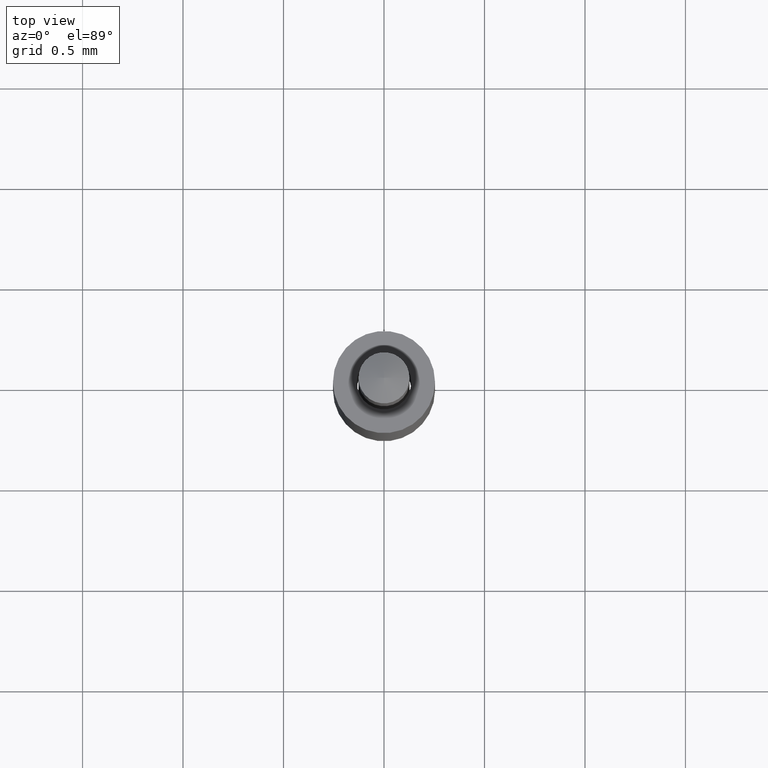
[diagram: clean part render]
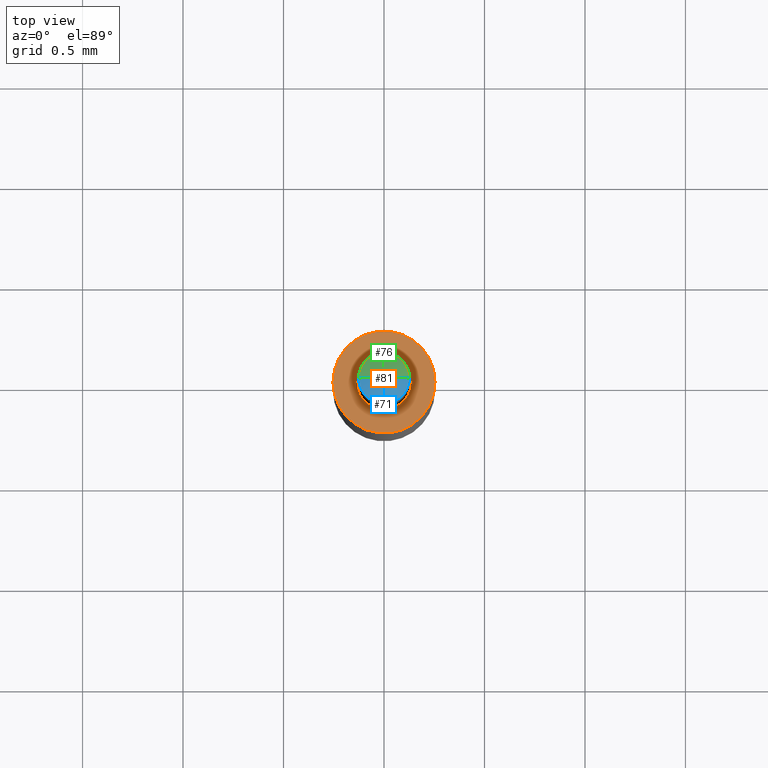
[diagram: same view with three faces highlighted in distinct colors, each labeled with its STEP entity id]
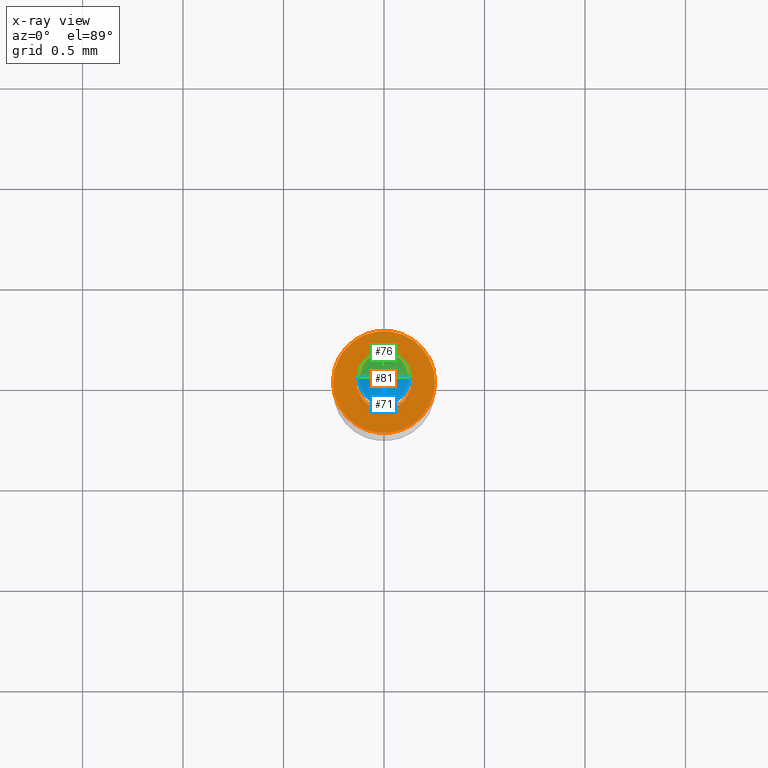
[diagram: x-ray of the same camera — body ghosted, the three highlighted faces saturated]
A machine part, top view with three faces highlighted in distinct colors.
The next image is the same camera in x-ray (body ghosted, the three faces saturated) — at least one of them is partly hidden behind the body in this view.
Their STEP definitions:

[orange] entity #81 — the highlighted planar face has unit normal (0, 0, 1).
#22 = AXIS2_PLACEMENT_3D ( 'NONE', #260, #268, #258 ) ;
#38 = AXIS2_PLACEMENT_3D ( 'NONE', #279, #281, #280 ) ;
#39 = AXIS2_PLACEMENT_3D ( 'NONE', #332, #284, #282 ) ;
#45 = AXIS2_PLACEMENT_3D ( 'NONE', #309, #334, #335 ) ;
#46 = AXIS2_PLACEMENT_3D ( 'NONE', #272, #269, #270 ) ;
#52 = EDGE_CURVE ( 'NONE', #174, #172, #223, .T. ) ;
#55 = EDGE_CURVE ( 'NONE', #180, #183, #173, .T. ) ;
#62 = EDGE_CURVE ( 'NONE', #172, #174, #208, .T. ) ;
#63 = EDGE_CURVE ( 'NONE', #183, #180, #133, .T. ) ;
#81 = ADVANCED_FACE ( 'NONE', ( #110, #109 ), #259, .T. ) ;
#109 = FACE_OUTER_BOUND ( 'NONE', #222, .T. ) ;
#110 = FACE_BOUND ( 'NONE', #218, .T. ) ;
#133 = CIRCLE ( 'NONE', #38, 0.005345904096558279900 ) ;
#151 = ORIENTED_EDGE ( 'NONE', *, *, #63, .T. ) ;
#172 = VERTEX_POINT ( 'NONE', #329 ) ;
#173 = CIRCLE ( 'NONE', #45, 0.005345904096558279900 ) ;
#174 = VERTEX_POINT ( 'NONE', #262 ) ;
#180 = VERTEX_POINT ( 'NONE', #330 ) ;
#183 = VERTEX_POINT ( 'NONE', #326 ) ;
#187 = ORIENTED_EDGE ( 'NONE', *, *, #52, .F. ) ;
#203 = ORIENTED_EDGE ( 'NONE', *, *, #55, .T. ) ;
#208 = CIRCLE ( 'NONE', #39, 0.01000000000000000000 ) ;
#218 = EDGE_LOOP ( 'NONE', ( #151, #203 ) ) ;
#222 = EDGE_LOOP ( 'NONE', ( #187, #231 ) ) ;
#223 = CIRCLE ( 'NONE', #46, 0.01000000000000000000 ) ;
#231 = ORIENTED_EDGE ( 'NONE', *, *, #62, .F. ) ;
#258 = DIRECTION ( 'NONE',  ( 1.000000000000000000, 0.0000000000000000000, -0.0000000000000000000 ) ) ;
#259 = PLANE ( 'NONE',  #22 ) ;
#260 = CARTESIAN_POINT ( 'NONE',  ( 0.0000000000000000000, 0.005345904096558279900, 0.09224620568251602800 ) ) ;
#262 = CARTESIAN_POINT ( 'NONE',  ( -0.01000000000000000000, 0.0000000000000000000, 0.09224620568251602800 ) ) ;
#268 = DIRECTION ( 'NONE',  ( 0.0000000000000000000, 0.0000000000000000000, 1.000000000000000000 ) ) ;
#269 = DIRECTION ( 'NONE',  ( -0.0000000000000000000, -0.0000000000000000000, -1.000000000000000000 ) ) ;
#270 = DIRECTION ( 'NONE',  ( -1.000000000000000000, 0.0000000000000000000, 0.0000000000000000000 ) ) ;
#272 = CARTESIAN_POINT ( 'NONE',  ( 0.0000000000000000000, 0.0000000000000000000, 0.09224620568251602800 ) ) ;
#279 = CARTESIAN_POINT ( 'NONE',  ( 0.0000000000000000000, 0.0000000000000000000, 0.09224620568251602800 ) ) ;
#280 = DIRECTION ( 'NONE',  ( -1.000000000000000000, 0.0000000000000000000, 0.0000000000000000000 ) ) ;
#281 = DIRECTION ( 'NONE',  ( -0.0000000000000000000, -0.0000000000000000000, -1.000000000000000000 ) ) ;
#282 = DIRECTION ( 'NONE',  ( -1.000000000000000000, 0.0000000000000000000, 0.0000000000000000000 ) ) ;
#284 = DIRECTION ( 'NONE',  ( -0.0000000000000000000, -0.0000000000000000000, -1.000000000000000000 ) ) ;
#309 = CARTESIAN_POINT ( 'NONE',  ( 0.0000000000000000000, 0.0000000000000000000, 0.09224620568251602800 ) ) ;
#326 = CARTESIAN_POINT ( 'NONE',  ( -0.005345904096558279900, 0.0000000000000000000, 0.09224620568251602800 ) ) ;
#329 = CARTESIAN_POINT ( 'NONE',  ( 0.01000000000000000000, 1.224646799147353400E-018, 0.09224620568251602800 ) ) ;
#330 = CARTESIAN_POINT ( 'NONE',  ( 0.005345904096558279900, 6.546844340398825000E-019, 0.09224620568251602800 ) ) ;
#332 = CARTESIAN_POINT ( 'NONE',  ( 0.0000000000000000000, 0.0000000000000000000, 0.09224620568251602800 ) ) ;
#334 = DIRECTION ( 'NONE',  ( -0.0000000000000000000, -0.0000000000000000000, -1.000000000000000000 ) ) ;
#335 = DIRECTION ( 'NONE',  ( -1.000000000000000000, 0.0000000000000000000, 0.0000000000000000000 ) ) ;

[blue] entity #71 — the highlighted toroidal blend (fillet) surface has major radius 0.2078 mm and minor (blend) radius 0.8356 mm.
#31 = AXIS2_PLACEMENT_3D ( 'NONE', #338, #336, #303 ) ;
#34 = EDGE_CURVE ( 'NONE', #155, #177, #228, .T. ) ;
#35 = AXIS2_PLACEMENT_3D ( 'NONE', #297, #357, #339 ) ;
#43 = AXIS2_PLACEMENT_3D ( 'NONE', #275, #274, #273 ) ;
#47 = AXIS2_PLACEMENT_3D ( 'NONE', #310, #311, #312 ) ;
#50 = EDGE_CURVE ( 'NONE', #154, #177, #168, .T. ) ;
#57 = EDGE_CURVE ( 'NONE', #155, #154, #224, .T. ) ;
#71 = ADVANCED_FACE ( 'NONE', ( #171 ), #184, .T. ) ;
#148 = EDGE_LOOP ( 'NONE', ( #211, #156, #198 ) ) ;
#154 = VERTEX_POINT ( 'NONE', #267 ) ;
#155 = VERTEX_POINT ( 'NONE', #266 ) ;
#156 = ORIENTED_EDGE ( 'NONE', *, *, #34, .T. ) ;
#168 = CIRCLE ( 'NONE', #47, 0.005000000000000000100 ) ;
#171 = FACE_OUTER_BOUND ( 'NONE', #148, .T. ) ;
#177 = VERTEX_POINT ( 'NONE', #327 ) ;
#184 = TOROIDAL_SURFACE ( 'NONE', #35, -0.008182880665241365500, 0.03289599500414629200 ) ;
#198 = ORIENTED_EDGE ( 'NONE', *, *, #50, .F. ) ;
#211 = ORIENTED_EDGE ( 'NONE', *, *, #57, .F. ) ;
#224 = CIRCLE ( 'NONE', #43, 0.03289599500414629200 ) ;
#228 = CIRCLE ( 'NONE', #31, 0.03289599500414629200 ) ;
#266 = CARTESIAN_POINT ( 'NONE',  ( 0.0000000000000000000, 0.0000000000000000000, 0.1404907113826559800 ) ) ;
#267 = CARTESIAN_POINT ( 'NONE',  ( 0.005000000000000000100, 6.123233995736766900E-019, 0.1387676933219367000 ) ) ;
#273 = DIRECTION ( 'NONE',  ( -1.000000000000000000, -1.224646799147353200E-016, 0.0000000000000000000 ) ) ;
#274 = DIRECTION ( 'NONE',  ( -1.224646799147353200E-016, 1.000000000000000000, 0.0000000000000000000 ) ) ;
#275 = CARTESIAN_POINT ( 'NONE',  ( -0.008182880665241365500, -1.002113861449260200E-018, 0.1086287128368767600 ) ) ;
#297 = CARTESIAN_POINT ( 'NONE',  ( 0.0000000000000000000, 0.0000000000000000000, 0.1086287128368767600 ) ) ;
#303 = DIRECTION ( 'NONE',  ( 0.0000000000000000000, 0.0000000000000000000, -1.000000000000000000 ) ) ;
#310 = CARTESIAN_POINT ( 'NONE',  ( 0.0000000000000000000, 0.0000000000000000000, 0.1387676933219367000 ) ) ;
#311 = DIRECTION ( 'NONE',  ( -0.0000000000000000000, -0.0000000000000000000, -1.000000000000000000 ) ) ;
#312 = DIRECTION ( 'NONE',  ( -1.000000000000000000, 0.0000000000000000000, 0.0000000000000000000 ) ) ;
#327 = CARTESIAN_POINT ( 'NONE',  ( -0.005000000000000000100, 0.0000000000000000000, 0.1387676933219367000 ) ) ;
#336 = DIRECTION ( 'NONE',  ( 0.0000000000000000000, -1.000000000000000000, 0.0000000000000000000 ) ) ;
#338 = CARTESIAN_POINT ( 'NONE',  ( 0.008182880665241365500, 0.0000000000000000000, 0.1086287128368767600 ) ) ;
#339 = DIRECTION ( 'NONE',  ( -1.000000000000000000, 0.0000000000000000000, 0.0000000000000000000 ) ) ;
#357 = DIRECTION ( 'NONE',  ( -0.0000000000000000000, -0.0000000000000000000, -1.000000000000000000 ) ) ;

[green] entity #76 — the highlighted toroidal blend (fillet) surface has major radius 0.2078 mm and minor (blend) radius 0.8356 mm.
#28 = AXIS2_PLACEMENT_3D ( 'NONE', #249, #240, #245 ) ;
#31 = AXIS2_PLACEMENT_3D ( 'NONE', #338, #336, #303 ) ;
#34 = EDGE_CURVE ( 'NONE', #155, #177, #228, .T. ) ;
#37 = AXIS2_PLACEMENT_3D ( 'NONE', #307, #356, #308 ) ;
#43 = AXIS2_PLACEMENT_3D ( 'NONE', #275, #274, #273 ) ;
#57 = EDGE_CURVE ( 'NONE', #155, #154, #224, .T. ) ;
#64 = EDGE_CURVE ( 'NONE', #177, #154, #199, .T. ) ;
#76 = ADVANCED_FACE ( 'NONE', ( #140 ), #201, .T. ) ;
#138 = ORIENTED_EDGE ( 'NONE', *, *, #64, .F. ) ;
#140 = FACE_OUTER_BOUND ( 'NONE', #227, .T. ) ;
#154 = VERTEX_POINT ( 'NONE', #267 ) ;
#155 = VERTEX_POINT ( 'NONE', #266 ) ;
#177 = VERTEX_POINT ( 'NONE', #327 ) ;
#188 = ORIENTED_EDGE ( 'NONE', *, *, #34, .F. ) ;
#195 = ORIENTED_EDGE ( 'NONE', *, *, #57, .T. ) ;
#199 = CIRCLE ( 'NONE', #37, 0.005000000000000000100 ) ;
#201 = TOROIDAL_SURFACE ( 'NONE', #28, -0.008182880665241365500, 0.03289599500414629200 ) ;
#224 = CIRCLE ( 'NONE', #43, 0.03289599500414629200 ) ;
#227 = EDGE_LOOP ( 'NONE', ( #188, #195, #138 ) ) ;
#228 = CIRCLE ( 'NONE', #31, 0.03289599500414629200 ) ;
#240 = DIRECTION ( 'NONE',  ( -0.0000000000000000000, -0.0000000000000000000, -1.000000000000000000 ) ) ;
#245 = DIRECTION ( 'NONE',  ( -1.000000000000000000, 0.0000000000000000000, 0.0000000000000000000 ) ) ;
#249 = CARTESIAN_POINT ( 'NONE',  ( 0.0000000000000000000, 0.0000000000000000000, 0.1086287128368767600 ) ) ;
#266 = CARTESIAN_POINT ( 'NONE',  ( 0.0000000000000000000, 0.0000000000000000000, 0.1404907113826559800 ) ) ;
#267 = CARTESIAN_POINT ( 'NONE',  ( 0.005000000000000000100, 6.123233995736766900E-019, 0.1387676933219367000 ) ) ;
#273 = DIRECTION ( 'NONE',  ( -1.000000000000000000, -1.224646799147353200E-016, 0.0000000000000000000 ) ) ;
#274 = DIRECTION ( 'NONE',  ( -1.224646799147353200E-016, 1.000000000000000000, 0.0000000000000000000 ) ) ;
#275 = CARTESIAN_POINT ( 'NONE',  ( -0.008182880665241365500, -1.002113861449260200E-018, 0.1086287128368767600 ) ) ;
#303 = DIRECTION ( 'NONE',  ( 0.0000000000000000000, 0.0000000000000000000, -1.000000000000000000 ) ) ;
#307 = CARTESIAN_POINT ( 'NONE',  ( 0.0000000000000000000, 0.0000000000000000000, 0.1387676933219367000 ) ) ;
#308 = DIRECTION ( 'NONE',  ( -1.000000000000000000, 0.0000000000000000000, 0.0000000000000000000 ) ) ;
#327 = CARTESIAN_POINT ( 'NONE',  ( -0.005000000000000000100, 0.0000000000000000000, 0.1387676933219367000 ) ) ;
#336 = DIRECTION ( 'NONE',  ( 0.0000000000000000000, -1.000000000000000000, 0.0000000000000000000 ) ) ;
#338 = CARTESIAN_POINT ( 'NONE',  ( 0.008182880665241365500, 0.0000000000000000000, 0.1086287128368767600 ) ) ;
#356 = DIRECTION ( 'NONE',  ( -0.0000000000000000000, -0.0000000000000000000, -1.000000000000000000 ) ) ;